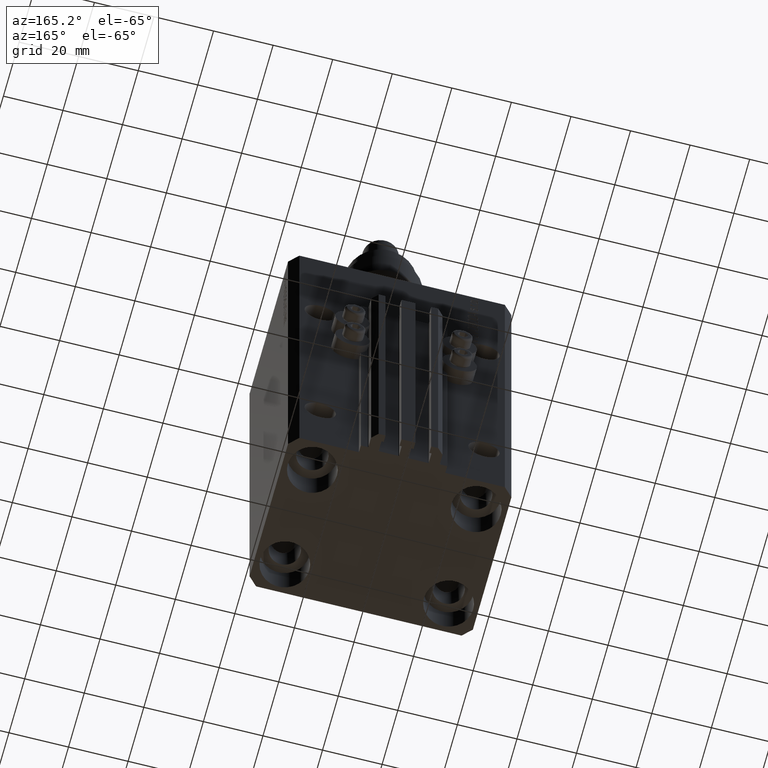
[diagram: clean part render]
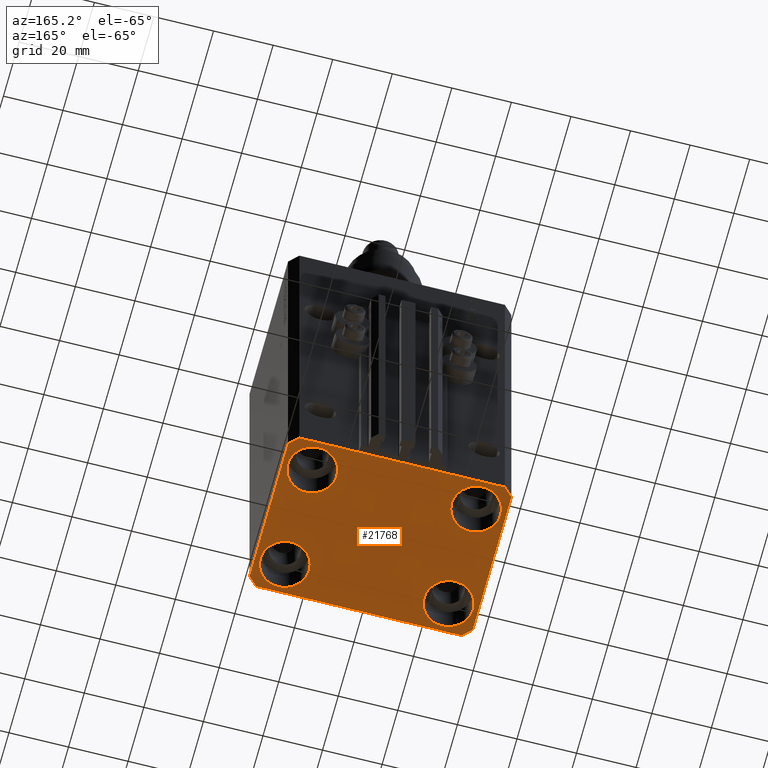
[diagram: same view with one face highlighted and labeled with its STEP entity id]
A machine part, auxiliary view. The second image highlights one B-rep face of the part: STEP entity #21768.
In plain terms, the highlighted planar face has unit normal (0, 0, 1).
Its self-contained STEP definition (entity closure, byte-faithful):
#708 = VECTOR ( 'NONE', #8623, 1000.000000000000000 ) ;
#770 = CIRCLE ( 'NONE', #8905, 8.250000000000000000 ) ;
#920 = CARTESIAN_POINT ( 'NONE',  ( 27.50000000000000355, -17.50000000000000000, -140.0000000000000000 ) ) ;
#1188 = DIRECTION ( 'NONE',  ( 0.000000000000000000, -1.000000000000000000, 0.000000000000000000 ) ) ;
#1471 = LINE ( 'NONE', #43085, #31666 ) ;
#1495 = VERTEX_POINT ( 'NONE', #43007 ) ;
#1955 = EDGE_CURVE ( 'NONE', #17700, #40030, #18150, .T. ) ;
#3323 = EDGE_LOOP ( 'NONE', ( #38105, #29498 ) ) ;
#3929 = EDGE_LOOP ( 'NONE', ( #25747, #10687 ) ) ;
#4046 = EDGE_LOOP ( 'NONE', ( #29330, #47846 ) ) ;
#4071 = ORIENTED_EDGE ( 'NONE', *, *, #42601, .F. ) ;
#4172 = LINE ( 'NONE', #16609, #37606 ) ;
#4365 = DIRECTION ( 'NONE',  ( -0.000000000000000000, -0.000000000000000000, 1.000000000000000000 ) ) ;
#5048 = VERTEX_POINT ( 'NONE', #5374 ) ;
#5374 = CARTESIAN_POINT ( 'NONE',  ( 35.74999999999999289, 17.50000000000001066, -140.0000000000000000 ) ) ;
#5503 = CARTESIAN_POINT ( 'NONE',  ( -35.75000000000000711, 17.50000000000000000, -140.0000000000000000 ) ) ;
#5718 = CIRCLE ( 'NONE', #32437, 8.250000000000000000 ) ;
#5935 = CARTESIAN_POINT ( 'NONE',  ( 37.50000000000051870, 24.49999999999995381, -140.0000000000000000 ) ) ;
#6153 = AXIS2_PLACEMENT_3D ( 'NONE', #920, #26820, #42298 ) ;
#6199 = ORIENTED_EDGE ( 'NONE', *, *, #12029, .F. ) ;
#6309 = ORIENTED_EDGE ( 'NONE', *, *, #42654, .F. ) ;
#7443 = VERTEX_POINT ( 'NONE', #11758 ) ;
#7931 = DIRECTION ( 'NONE',  ( -0.7071067811865471286, -0.7071067811865479058, 0.000000000000000000 ) ) ;
#8196 = CARTESIAN_POINT ( 'NONE',  ( -27.50000000000000355, 17.50000000000000000, -140.0000000000000000 ) ) ;
#8330 = VERTEX_POINT ( 'NONE', #41164 ) ;
#8623 = DIRECTION ( 'NONE',  ( 1.000000000000000000, 0.000000000000000000, 0.000000000000000000 ) ) ;
#8905 = AXIS2_PLACEMENT_3D ( 'NONE', #22373, #37833, #38083 ) ;
#8922 = ORIENTED_EDGE ( 'NONE', *, *, #23923, .F. ) ;
#8977 = ORIENTED_EDGE ( 'NONE', *, *, #48839, .T. ) ;
#9996 = AXIS2_PLACEMENT_3D ( 'NONE', #30227, #45680, #38075 ) ;
#10109 = CARTESIAN_POINT ( 'NONE',  ( 27.49999999999999645, 17.50000000000001066, -140.0000000000000000 ) ) ;
#10687 = ORIENTED_EDGE ( 'NONE', *, *, #27566, .T. ) ;
#10862 = VERTEX_POINT ( 'NONE', #48354 ) ;
#11151 = VERTEX_POINT ( 'NONE', #5935 ) ;
#11758 = CARTESIAN_POINT ( 'NONE',  ( 34.50000000000056843, 27.50000000000000000, -140.0000000000000000 ) ) ;
#12029 = EDGE_CURVE ( 'NONE', #7443, #1495, #18768, .T. ) ;
#12160 = VERTEX_POINT ( 'NONE', #34953 ) ;
#12625 = CARTESIAN_POINT ( 'NONE',  ( -37.49999999999999289, 24.50000000000000000, -140.0000000000000000 ) ) ;
#12968 = AXIS2_PLACEMENT_3D ( 'NONE', #33900, #37201, #45812 ) ;
#13475 = CIRCLE ( 'NONE', #6153, 8.250000000000000000 ) ;
#13674 = DIRECTION ( 'NONE',  ( 1.000000000000000000, 0.000000000000000000, 0.000000000000000000 ) ) ;
#13845 = CIRCLE ( 'NONE', #26758, 8.249999999999992895 ) ;
#14228 = VECTOR ( 'NONE', #1188, 1000.000000000000000 ) ;
#15609 = EDGE_LOOP ( 'NONE', ( #8977, #45760 ) ) ;
#15624 = VERTEX_POINT ( 'NONE', #45350 ) ;
#16299 = AXIS2_PLACEMENT_3D ( 'NONE', #37815, #18297, #37315 ) ;
#16309 = EDGE_CURVE ( 'NONE', #10862, #28500, #39303, .T. ) ;
#16566 = DIRECTION ( 'NONE',  ( 1.000000000000000000, 0.000000000000000000, 0.000000000000000000 ) ) ;
#16609 = CARTESIAN_POINT ( 'NONE',  ( 34.49999999999999289, -27.49999999999999645, -140.0000000000000000 ) ) ;
#16889 = CARTESIAN_POINT ( 'NONE',  ( 19.25000000000000000, -17.50000000000000000, -140.0000000000000000 ) ) ;
#17009 = VECTOR ( 'NONE', #7931, 1000.000000000000000 ) ;
#17364 = CARTESIAN_POINT ( 'NONE',  ( 37.50000000000051870, 24.49999999999995381, -140.0000000000000000 ) ) ;
#17700 = VERTEX_POINT ( 'NONE', #34327 ) ;
#17863 = DIRECTION ( 'NONE',  ( 1.076236605503979380E-14, 1.000000000000000000, 0.000000000000000000 ) ) ;
#17973 = DIRECTION ( 'NONE',  ( -0.000000000000000000, -0.000000000000000000, 1.000000000000000000 ) ) ;
#18150 = CIRCLE ( 'NONE', #34332, 8.250000000000000000 ) ;
#18297 = DIRECTION ( 'NONE',  ( -0.000000000000000000, -0.000000000000000000, 1.000000000000000000 ) ) ;
#18306 = FACE_BOUND ( 'NONE', #3929, .T. ) ;
#18768 = LINE ( 'NONE', #49943, #32948 ) ;
#19425 = CIRCLE ( 'NONE', #12968, 8.249999999999992895 ) ;
#19721 = EDGE_CURVE ( 'NONE', #47528, #5048, #13845, .T. ) ;
#19913 = CARTESIAN_POINT ( 'NONE',  ( -27.50000000000000355, -17.50000000000000000, -140.0000000000000000 ) ) ;
#19998 = DIRECTION ( 'NONE',  ( 0.7071067811865483499, -0.7071067811865466846, 0.000000000000000000 ) ) ;
#20207 = EDGE_LOOP ( 'NONE', ( #6199, #4071, #8922, #22558, #22806, #33305, #47463, #6309 ) ) ;
#20837 = EDGE_CURVE ( 'NONE', #49712, #41590, #26825, .T. ) ;
#21068 = VECTOR ( 'NONE', #29031, 1000.000000000000114 ) ;
#21768 = ADVANCED_FACE ( 'NONE', ( #22616, #18306, #33771, #49244, #37825 ), #49501, .F. ) ;
#22373 = CARTESIAN_POINT ( 'NONE',  ( -27.50000000000000355, 17.50000000000000000, -140.0000000000000000 ) ) ;
#22558 = ORIENTED_EDGE ( 'NONE', *, *, #23699, .F. ) ;
#22616 = FACE_BOUND ( 'NONE', #4046, .T. ) ;
#22806 = ORIENTED_EDGE ( 'NONE', *, *, #16309, .F. ) ;
#23699 = EDGE_CURVE ( 'NONE', #28500, #49897, #4172, .T. ) ;
#23923 = EDGE_CURVE ( 'NONE', #49897, #11151, #41700, .T. ) ;
#25747 = ORIENTED_EDGE ( 'NONE', *, *, #20837, .T. ) ;
#26745 = CARTESIAN_POINT ( 'NONE',  ( 37.49999999999999289, -24.50000000000000000, -140.0000000000000000 ) ) ;
#26758 = AXIS2_PLACEMENT_3D ( 'NONE', #10109, #17973, #13674 ) ;
#26820 = DIRECTION ( 'NONE',  ( -0.000000000000000000, -0.000000000000000000, 1.000000000000000000 ) ) ;
#26825 = CIRCLE ( 'NONE', #16299, 8.250000000000000000 ) ;
#27566 = EDGE_CURVE ( 'NONE', #41590, #49712, #13475, .T. ) ;
#28082 = LINE ( 'NONE', #12625, #14228 ) ;
#28500 = VERTEX_POINT ( 'NONE', #41441 ) ;
#29031 = DIRECTION ( 'NONE',  ( -0.7071067811865356934, 0.7071067811865594521, 0.000000000000000000 ) ) ;
#29330 = ORIENTED_EDGE ( 'NONE', *, *, #41125, .T. ) ;
#29498 = ORIENTED_EDGE ( 'NONE', *, *, #48502, .T. ) ;
#29783 = LINE ( 'NONE', #17364, #21068 ) ;
#30116 = EDGE_CURVE ( 'NONE', #15624, #31767, #28082, .T. ) ;
#30227 = CARTESIAN_POINT ( 'NONE',  ( 0.000000000000000000, 0.000000000000000000, -140.0000000000000000 ) ) ;
#30452 = EDGE_CURVE ( 'NONE', #12160, #8330, #43401, .T. ) ;
#30534 = CARTESIAN_POINT ( 'NONE',  ( -34.49999999999999289, 27.50000000000000000, -140.0000000000000000 ) ) ;
#30781 = LINE ( 'NONE', #30534, #17009 ) ;
#31126 = VECTOR ( 'NONE', #17863, 1000.000000000000000 ) ;
#31522 = CARTESIAN_POINT ( 'NONE',  ( -27.50000000000000355, -17.50000000000000000, -140.0000000000000000 ) ) ;
#31666 = VECTOR ( 'NONE', #19998, 1000.000000000000000 ) ;
#31767 = VERTEX_POINT ( 'NONE', #47159 ) ;
#32437 = AXIS2_PLACEMENT_3D ( 'NONE', #19913, #46781, #43505 ) ;
#32718 = CARTESIAN_POINT ( 'NONE',  ( 35.75000000000000711, -17.50000000000000000, -140.0000000000000000 ) ) ;
#32948 = VECTOR ( 'NONE', #34221, 1000.000000000000000 ) ;
#33305 = ORIENTED_EDGE ( 'NONE', *, *, #45049, .F. ) ;
#33771 = FACE_BOUND ( 'NONE', #3323, .T. ) ;
#33900 = CARTESIAN_POINT ( 'NONE',  ( 27.49999999999999645, 17.50000000000001066, -140.0000000000000000 ) ) ;
#34221 = DIRECTION ( 'NONE',  ( -1.000000000000000000, 0.000000000000000000, 0.000000000000000000 ) ) ;
#34327 = CARTESIAN_POINT ( 'NONE',  ( -19.25000000000000355, 17.50000000000000000, -140.0000000000000000 ) ) ;
#34332 = AXIS2_PLACEMENT_3D ( 'NONE', #8196, #42950, #16566 ) ;
#34953 = CARTESIAN_POINT ( 'NONE',  ( -19.25000000000000355, -17.50000000000000000, -140.0000000000000000 ) ) ;
#35230 = CARTESIAN_POINT ( 'NONE',  ( -34.49999999999998579, -27.49999999999999645, -140.0000000000000000 ) ) ;
#37201 = DIRECTION ( 'NONE',  ( -0.000000000000000000, -0.000000000000000000, 1.000000000000000000 ) ) ;
#37315 = DIRECTION ( 'NONE',  ( 1.000000000000000000, 0.000000000000000000, 0.000000000000000000 ) ) ;
#37606 = VECTOR ( 'NONE', #43238, 1000.000000000000114 ) ;
#37815 = CARTESIAN_POINT ( 'NONE',  ( 27.50000000000000355, -17.50000000000000000, -140.0000000000000000 ) ) ;
#37825 = FACE_OUTER_BOUND ( 'NONE', #20207, .T. ) ;
#37833 = DIRECTION ( 'NONE',  ( -0.000000000000000000, -0.000000000000000000, 1.000000000000000000 ) ) ;
#38075 = DIRECTION ( 'NONE',  ( 1.000000000000000000, 0.000000000000000000, -0.000000000000000000 ) ) ;
#38083 = DIRECTION ( 'NONE',  ( 1.000000000000000000, 0.000000000000000000, 0.000000000000000000 ) ) ;
#38105 = ORIENTED_EDGE ( 'NONE', *, *, #19721, .T. ) ;
#39303 = LINE ( 'NONE', #35230, #708 ) ;
#39377 = DIRECTION ( 'NONE',  ( 1.000000000000000000, 0.000000000000000000, 0.000000000000000000 ) ) ;
#40030 = VERTEX_POINT ( 'NONE', #5503 ) ;
#40984 = AXIS2_PLACEMENT_3D ( 'NONE', #31522, #4365, #39377 ) ;
#41125 = EDGE_CURVE ( 'NONE', #8330, #12160, #5718, .T. ) ;
#41164 = CARTESIAN_POINT ( 'NONE',  ( -35.75000000000000711, -17.50000000000000000, -140.0000000000000000 ) ) ;
#41441 = CARTESIAN_POINT ( 'NONE',  ( 34.49999999999999289, -27.49999999999999645, -140.0000000000000000 ) ) ;
#41590 = VERTEX_POINT ( 'NONE', #32718 ) ;
#41700 = LINE ( 'NONE', #45736, #31126 ) ;
#42298 = DIRECTION ( 'NONE',  ( 1.000000000000000000, 0.000000000000000000, 0.000000000000000000 ) ) ;
#42601 = EDGE_CURVE ( 'NONE', #11151, #7443, #29783, .T. ) ;
#42654 = EDGE_CURVE ( 'NONE', #1495, #15624, #30781, .T. ) ;
#42950 = DIRECTION ( 'NONE',  ( -0.000000000000000000, -0.000000000000000000, 1.000000000000000000 ) ) ;
#43007 = CARTESIAN_POINT ( 'NONE',  ( -34.49999999999999289, 27.50000000000000000, -140.0000000000000000 ) ) ;
#43085 = CARTESIAN_POINT ( 'NONE',  ( -37.49999999999999289, -24.50000000000000000, -140.0000000000000000 ) ) ;
#43238 = DIRECTION ( 'NONE',  ( 0.7071067811865474617, 0.7071067811865474617, 0.000000000000000000 ) ) ;
#43401 = CIRCLE ( 'NONE', #40984, 8.250000000000000000 ) ;
#43505 = DIRECTION ( 'NONE',  ( 1.000000000000000000, 0.000000000000000000, 0.000000000000000000 ) ) ;
#43666 = CARTESIAN_POINT ( 'NONE',  ( 19.25000000000000000, 17.50000000000001066, -140.0000000000000000 ) ) ;
#45049 = EDGE_CURVE ( 'NONE', #31767, #10862, #1471, .T. ) ;
#45350 = CARTESIAN_POINT ( 'NONE',  ( -37.49999999999999289, 24.50000000000000000, -140.0000000000000000 ) ) ;
#45680 = DIRECTION ( 'NONE',  ( 0.000000000000000000, 0.000000000000000000, 1.000000000000000000 ) ) ;
#45736 = CARTESIAN_POINT ( 'NONE',  ( 37.49999999999999289, -24.50000000000000000, -140.0000000000000000 ) ) ;
#45760 = ORIENTED_EDGE ( 'NONE', *, *, #1955, .T. ) ;
#45812 = DIRECTION ( 'NONE',  ( 1.000000000000000000, 0.000000000000000000, 0.000000000000000000 ) ) ;
#46781 = DIRECTION ( 'NONE',  ( -0.000000000000000000, -0.000000000000000000, 1.000000000000000000 ) ) ;
#47159 = CARTESIAN_POINT ( 'NONE',  ( -37.49999999999999289, -24.50000000000000000, -140.0000000000000000 ) ) ;
#47463 = ORIENTED_EDGE ( 'NONE', *, *, #30116, .F. ) ;
#47528 = VERTEX_POINT ( 'NONE', #43666 ) ;
#47846 = ORIENTED_EDGE ( 'NONE', *, *, #30452, .T. ) ;
#48354 = CARTESIAN_POINT ( 'NONE',  ( -34.49999999999998579, -27.49999999999999645, -140.0000000000000000 ) ) ;
#48502 = EDGE_CURVE ( 'NONE', #5048, #47528, #19425, .T. ) ;
#48839 = EDGE_CURVE ( 'NONE', #40030, #17700, #770, .T. ) ;
#49244 = FACE_BOUND ( 'NONE', #15609, .T. ) ;
#49501 = PLANE ( 'NONE',  #9996 ) ;
#49712 = VERTEX_POINT ( 'NONE', #16889 ) ;
#49897 = VERTEX_POINT ( 'NONE', #26745 ) ;
#49943 = CARTESIAN_POINT ( 'NONE',  ( 34.50000000000056843, 27.50000000000000000, -140.0000000000000000 ) ) ;